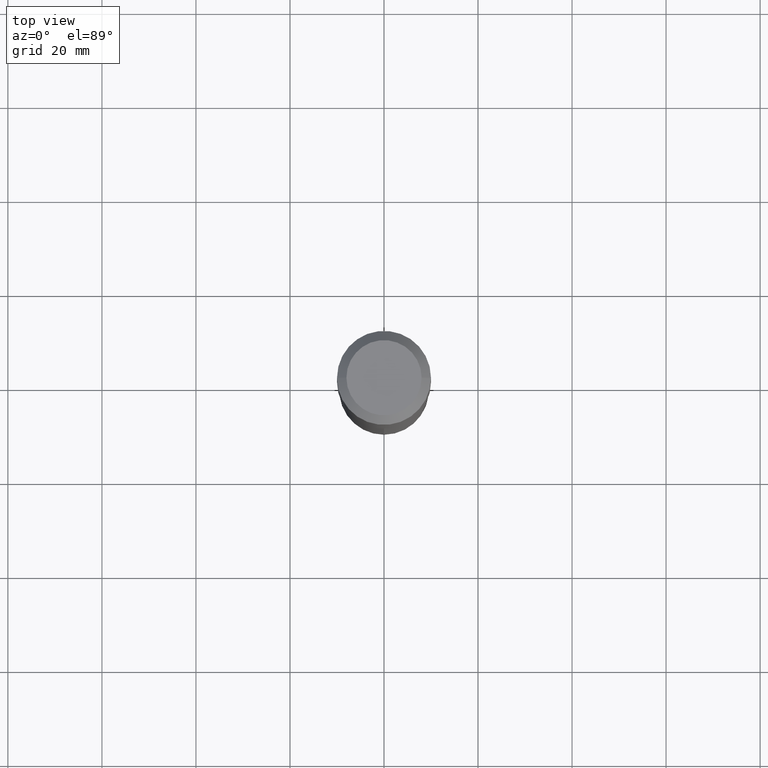
[diagram: clean part render]
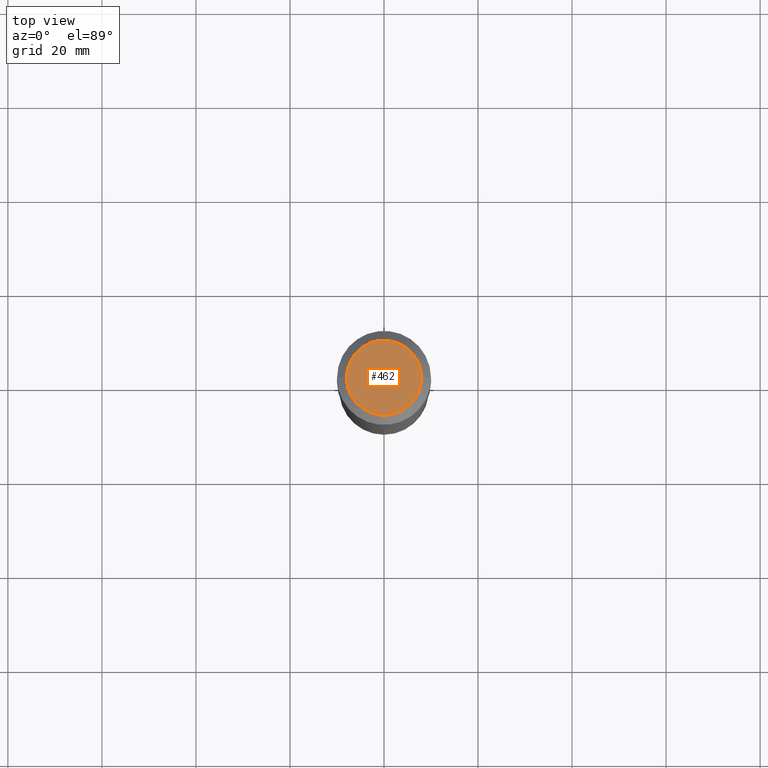
[diagram: same view with one face highlighted and labeled with its STEP entity id]
A machine part, top view. The second image highlights one B-rep face of the part: STEP entity #462.
In plain terms, the highlighted planar face has unit normal (0, -0, -1).
Its self-contained STEP definition (entity closure, byte-faithful):
#26 = CARTESIAN_POINT ( 'NONE',  ( -9.427742298522567634E-47, 1.346031739168368355E-32, 3.855188123715870730E-18 ) ) ;
#45 = VERTEX_POINT ( 'NONE', #201 ) ;
#57 = CIRCLE ( 'NONE', #119, 0.3149600000000000177 ) ;
#80 = DIRECTION ( 'NONE',  ( -2.445468806185136597E-29, 3.491481338843145583E-15, 1.000000000000000000 ) ) ;
#105 = CARTESIAN_POINT ( 'NONE',  ( -9.427742298522567634E-47, 1.346031739168368355E-32, 3.855188123715870730E-18 ) ) ;
#107 = CARTESIAN_POINT ( 'NONE',  ( -4.713871149261283817E-47, 6.730158695841841775E-33, 1.927594061857935365E-18 ) ) ;
#119 = AXIS2_PLACEMENT_3D ( 'NONE', #26, #177, #309 ) ;
#143 = DIRECTION ( 'NONE',  ( 1.000000000000000000, -6.982962677686265922E-15, 4.876223630392693006E-29 ) ) ;
#170 = DIRECTION ( 'NONE',  ( -1.000000000000000000, 6.982962677686265922E-15, -4.876176775795935793E-29 ) ) ;
#177 = DIRECTION ( 'NONE',  ( -2.445468806185136597E-29, 3.491481338843145583E-15, 1.000000000000000000 ) ) ;
#185 = DIRECTION ( 'NONE',  ( 2.438088387897960049E-29, -3.491481338843145188E-15, -1.000000000000000000 ) ) ;
#201 = CARTESIAN_POINT ( 'NONE',  ( 0.3149600000000000177, -2.568339875860642378E-15, 3.855188123732540039E-18 ) ) ;
#211 = AXIS2_PLACEMENT_3D ( 'NONE', #107, #185, #170 ) ;
#218 = CARTESIAN_POINT ( 'NONE',  ( -0.3149600000000000177, 2.336813545274319235E-15, 3.855188123700009542E-18 ) ) ;
#262 = EDGE_LOOP ( 'NONE', ( #301, #361 ) ) ;
#295 = PLANE ( 'NONE',  #211 ) ;
#301 = ORIENTED_EDGE ( 'NONE', *, *, #401, .T. ) ;
#309 = DIRECTION ( 'NONE',  ( 1.000000000000000000, -6.982962677686265922E-15, 4.876223630392693006E-29 ) ) ;
#320 = CIRCLE ( 'NONE', #383, 0.3149600000000000177 ) ;
#328 = VERTEX_POINT ( 'NONE', #218 ) ;
#361 = ORIENTED_EDGE ( 'NONE', *, *, #388, .T. ) ;
#383 = AXIS2_PLACEMENT_3D ( 'NONE', #105, #80, #143 ) ;
#388 = EDGE_CURVE ( 'NONE', #45, #328, #57, .T. ) ;
#401 = EDGE_CURVE ( 'NONE', #328, #45, #320, .T. ) ;
#462 = ADVANCED_FACE ( 'NONE', ( #476 ), #295, .F. ) ;
#476 = FACE_OUTER_BOUND ( 'NONE', #262, .T. ) ;